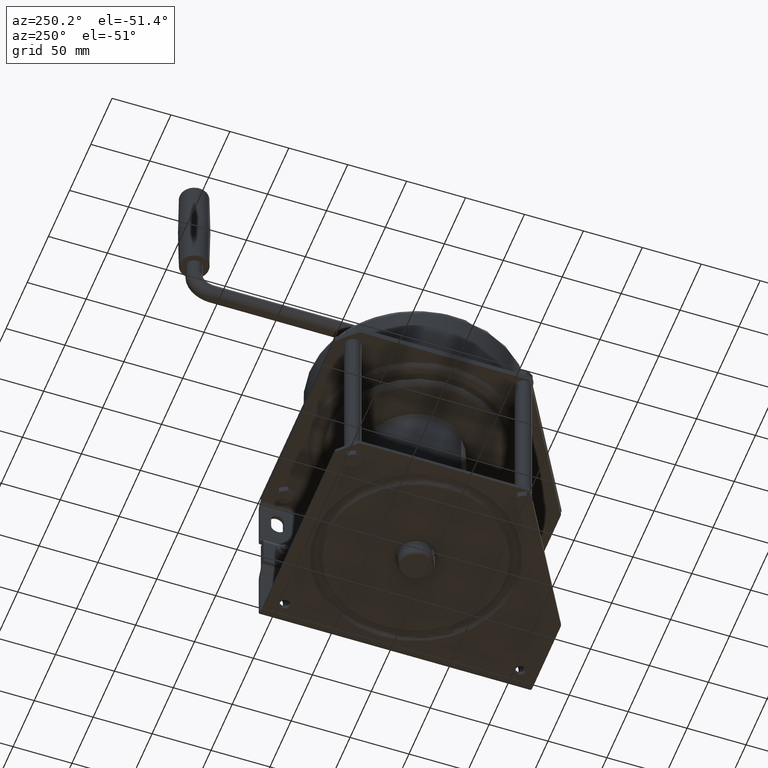
[diagram: clean part render]
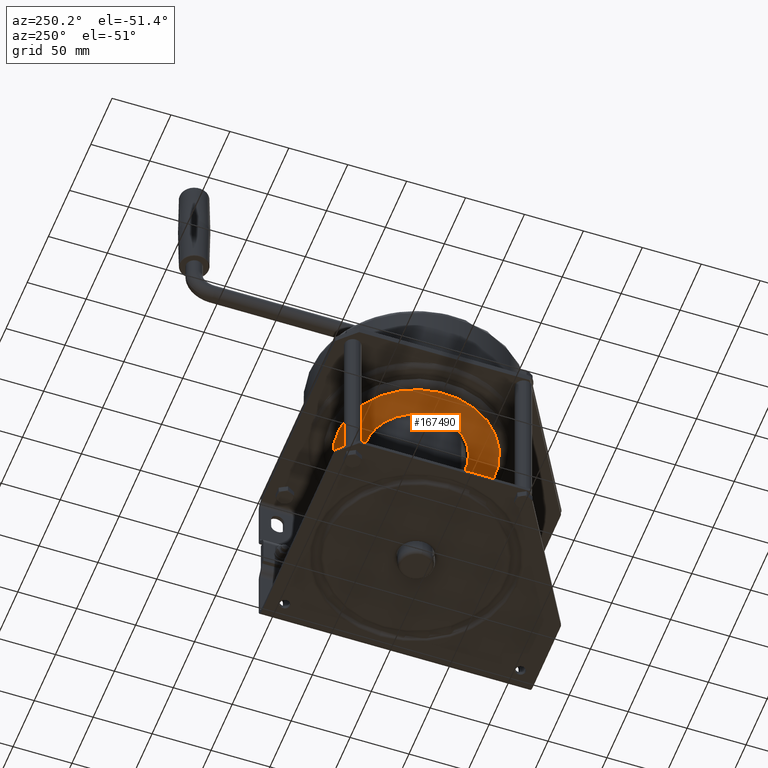
[diagram: same view with one face highlighted and labeled with its STEP entity id]
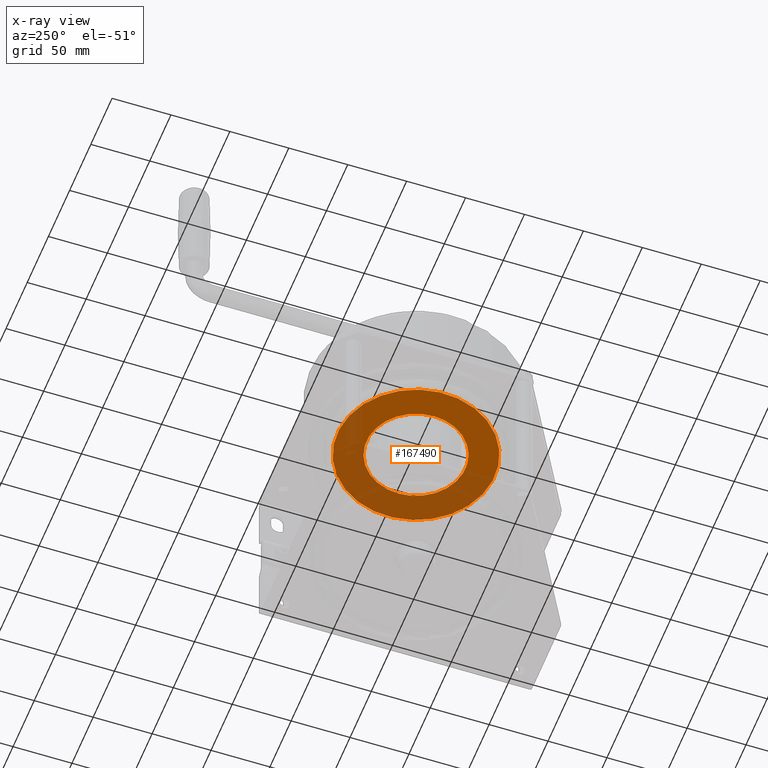
[diagram: x-ray of the same camera — body ghosted, the highlighted face saturated]
A machine part, auxiliary view. The second image highlights one B-rep face of the part: STEP entity #167490.
The next image is the same camera in x-ray: the body ghosted, the highlighted face saturated — about 52% of this face is hidden behind the body in this view.
In plain terms, the highlighted planar face has unit normal (0, 0, -1).
Its self-contained STEP definition (entity closure, byte-faithful):
#167000=CARTESIAN_POINT('',(47.1413092490782,131.805213467983,
47.1413092490782));
#167010=VERTEX_POINT('',#167000);
#167040=CARTESIAN_POINT('',(-1.4210854715202E-14,131.805213467983,0.));
#167050=DIRECTION('',(0.,-1.,0.));
#167060=DIRECTION('',(-0.707106781186547,0.,-0.707106781186548));
#167070=AXIS2_PLACEMENT_3D('',#167040,#167050,#167060);
#167080=CIRCLE('',#167070,66.6678788880707);
#167090=CARTESIAN_POINT('',(-47.1413092490782,131.805213467983,
-47.1413092490782));
#167100=VERTEX_POINT('',#167090);
#167110=EDGE_CURVE('',#167010,#167100,#167080,.T.);
#167240=CARTESIAN_POINT('',(-37.0056834670835,131.805213467983,
-37.0056834670835));
#167250=DIRECTION('',(0.,-1.,0.));
#167260=DIRECTION('',(0.707106781186547,0.,0.707106781186548));
#167270=AXIS2_PLACEMENT_3D('',#167240,#167250,#167260);
#167280=PLANE('',#167270);
#167290=CARTESIAN_POINT('',(-1.4210854715202E-14,131.805213467983,
-8.5265128291212E-14));
#167300=DIRECTION('',(0.,1.,0.));
#167310=DIRECTION('',(-1.,0.,0.));
#167320=AXIS2_PLACEMENT_3D('',#167290,#167300,#167310);
#167330=CIRCLE('',#167320,42.);
#167340=CARTESIAN_POINT('',(-42.,131.805213467983,-8.5265128291212E-14))
;
#167350=VERTEX_POINT('',#167340);
#167360=CARTESIAN_POINT('',(42.,131.805213467983,-8.01216117347931E-14))
;
#167370=VERTEX_POINT('',#167360);
#167380=EDGE_CURVE('',#167350,#167370,#167330,.T.);
#167390=ORIENTED_EDGE('',*,*,#167380,.T.);
#167400=EDGE_CURVE('',#167370,#167350,#167330,.T.);
#167410=ORIENTED_EDGE('',*,*,#167400,.T.);
#167420=EDGE_LOOP('',(#167410,#167390));
#167430=FACE_BOUND('',#167420,.T.);
#167440=EDGE_CURVE('',#167100,#167010,#167080,.T.);
#167450=ORIENTED_EDGE('',*,*,#167440,.T.);
#167460=ORIENTED_EDGE('',*,*,#167110,.T.);
#167470=EDGE_LOOP('',(#167460,#167450));
#167480=FACE_OUTER_BOUND('',#167470,.T.);
#167490=ADVANCED_FACE('',(#167430,#167480),#167280,.T.);